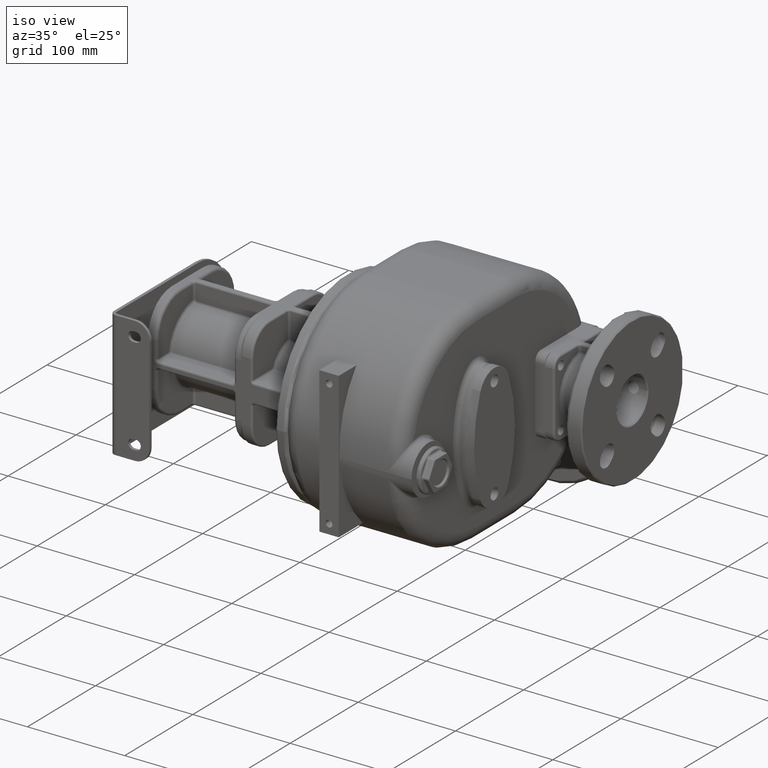
[diagram: clean part render]
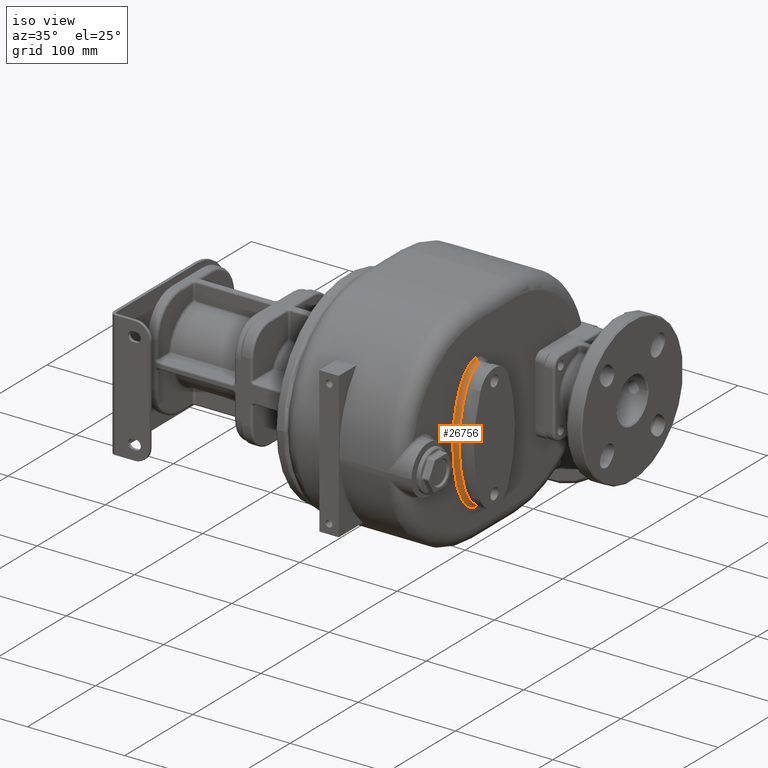
[diagram: same view with one face highlighted and labeled with its STEP entity id]
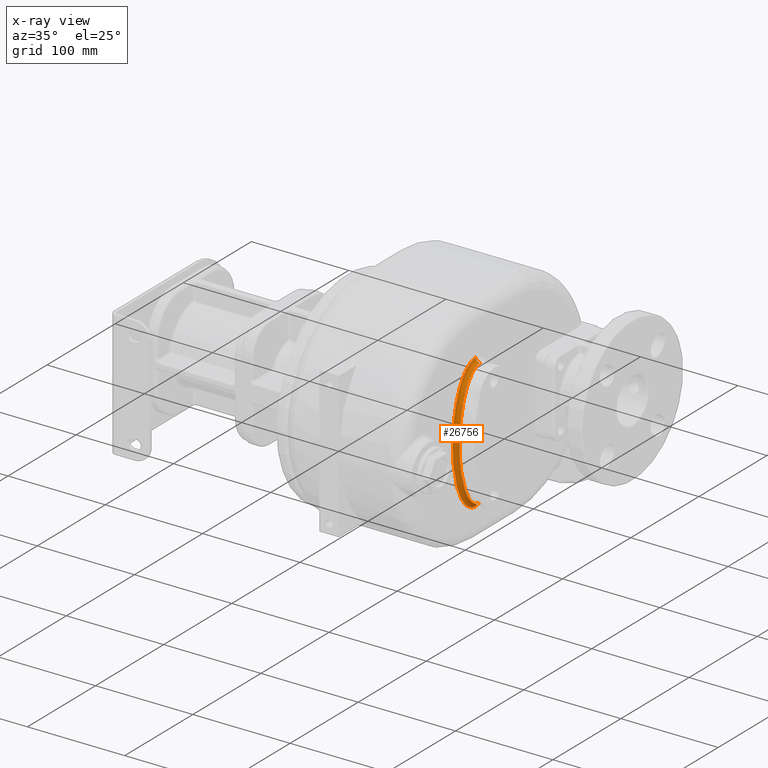
[diagram: x-ray of the same camera — body ghosted, the highlighted face saturated]
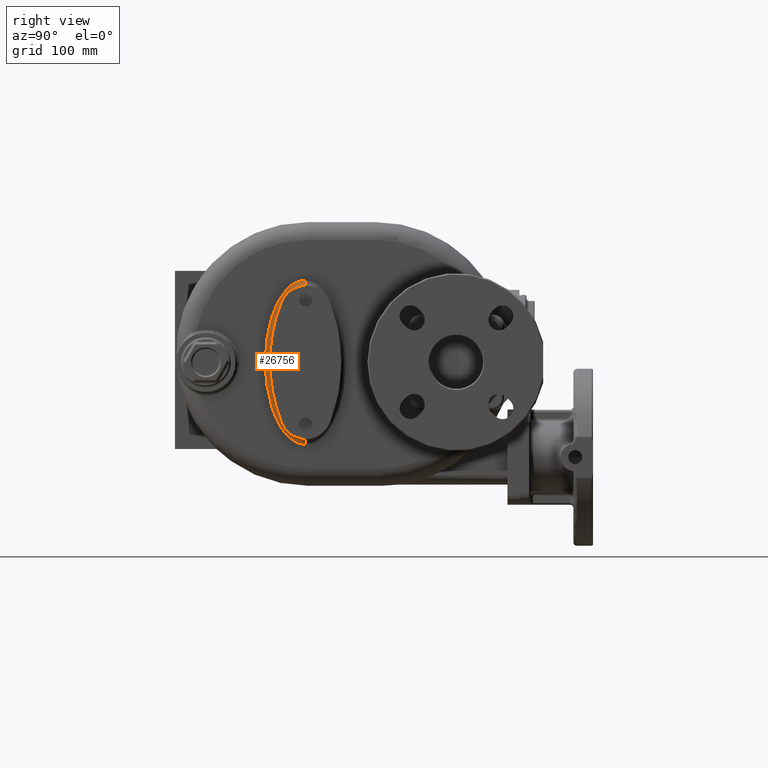
[diagram: same view with one face highlighted and labeled with its STEP entity id]
A machine part, iso view. The second image highlights one B-rep face of the part: STEP entity #26756.
The next image is the same camera in x-ray: the body ghosted, the highlighted face saturated — about 0% of this face is hidden behind the body in this view.
A second angle (right view) of the same face is appended — the face is thin or edge-on in the first view.
In plain terms, the highlighted face is a freeform B-spline surface patch.
Its self-contained STEP definition (entity closure, byte-faithful):
#2377=CARTESIAN_POINT('',(7.400000634498E1,1.099999999998E2,-7.599999999998E1));
#2487=CARTESIAN_POINT('',(7.400000634498E1,1.100000000002E2,6.199999999998E1));
#2489=CARTESIAN_POINT('',(7.400000634498E1,1.100000000002E2,6.199999999998E1));
#2490=CARTESIAN_POINT('',(7.400001016623E1,1.097864255186E2,6.199999317442E1));
#2491=CARTESIAN_POINT('',(7.399999528184E1,1.093582951461E2,6.199229907980E1));
#2492=CARTESIAN_POINT('',(7.400000126423E1,1.087129691518E2,6.195749155583E1));
#2493=CARTESIAN_POINT('',(7.399999966125E1,1.080650713003E2,6.189893652659E1));
#2494=CARTESIAN_POINT('',(7.400000009077E1,1.074149422378E2,6.181637691769E1));
#2495=CARTESIAN_POINT('',(7.399999997568E1,1.067629530415E2,6.170954380167E1));
#2496=CARTESIAN_POINT('',(7.400000000652E1,1.061096549127E2,6.157808600898E1));
#2497=CARTESIAN_POINT('',(7.399999999825E1,1.054550537673E2,6.142173653598E1));
#2498=CARTESIAN_POINT('',(7.400000000047E1,1.047982427450E2,6.123985690766E1));
#2499=CARTESIAN_POINT('',(7.399999999987E1,1.041385800657E2,6.103159298640E1));
#2500=CARTESIAN_POINT('',(7.400000000003E1,1.034755941347E2,6.079616920723E1));
#2501=CARTESIAN_POINT('',(7.399999999999E1,1.028091774695E2,6.053274117083E1));
#2502=CARTESIAN_POINT('',(7.4E1,1.021392803762E2,6.024040083799E1));
#2503=CARTESIAN_POINT('',(7.4E1,1.014653446813E2,5.991799145068E1));
#2504=CARTESIAN_POINT('',(7.4E1,1.007870304926E2,5.956421515867E1));
#2505=CARTESIAN_POINT('',(7.4E1,1.001039183801E2,5.917765712304E1));
#2506=CARTESIAN_POINT('',(7.4E1,9.941573877734E1,5.875679610768E1));
#2507=CARTESIAN_POINT('',(7.4E1,9.872230784045E1,5.830000907389E1));
#2508=CARTESIAN_POINT('',(7.4E1,9.802315782449E1,5.780534040832E1));
#2509=CARTESIAN_POINT('',(7.4E1,9.731816779279E1,5.727087796199E1));
#2510=CARTESIAN_POINT('',(7.4E1,9.660703207734E1,5.669433660117E1));
#2511=CARTESIAN_POINT('',(7.4E1,9.588957941500E1,5.607338677993E1));
#2512=CARTESIAN_POINT('',(7.4E1,9.516580997849E1,5.540558207864E1));
#2513=CARTESIAN_POINT('',(7.4E1,9.443551483985E1,5.468799005822E1));
#2514=CARTESIAN_POINT('',(7.4E1,9.369882861536E1,5.391792389553E1));
#2515=CARTESIAN_POINT('',(7.4E1,9.295583217136E1,5.309210027617E1));
#2516=CARTESIAN_POINT('',(7.4E1,9.220667555239E1,5.220720784048E1));
#2517=CARTESIAN_POINT('',(7.4E1,9.145179272807E1,5.125995393841E1));
#2518=CARTESIAN_POINT('',(7.4E1,9.069162995005E1,5.024646069120E1));
#2519=CARTESIAN_POINT('',(7.4E1,8.992683460381E1,4.916321637141E1));
#2520=CARTESIAN_POINT('',(7.4E1,8.915833834719E1,4.800622592836E1));
#2521=CARTESIAN_POINT('',(7.4E1,8.838715930190E1,4.677174800671E1));
#2522=CARTESIAN_POINT('',(7.4E1,8.761467028553E1,4.545578958768E1));
#2523=CARTESIAN_POINT('',(7.4E1,8.684233478774E1,4.405453730645E1));
#2524=CARTESIAN_POINT('',(7.4E1,8.607203293465E1,4.256417048403E1));
#2525=CARTESIAN_POINT('',(7.4E1,8.530579810112E1,4.098113656314E1));
#2526=CARTESIAN_POINT('',(7.4E1,8.454602327321E1,3.930204993034E1));
#2527=CARTESIAN_POINT('',(7.4E1,8.379538876064E1,3.752392194267E1));
#2528=CARTESIAN_POINT('',(7.4E1,8.305679161787E1,3.564416015036E1));
#2529=CARTESIAN_POINT('',(7.4E1,8.233357881726E1,3.366079853117E1));
#2530=CARTESIAN_POINT('',(7.4E1,8.162917730751E1,3.157246477210E1));
#2531=CARTESIAN_POINT('',(7.4E1,8.094745636475E1,2.937866750332E1));
#2532=CARTESIAN_POINT('',(7.4E1,8.029237572995E1,2.707977775896E1));
#2533=CARTESIAN_POINT('',(7.4E1,7.966808955932E1,2.467711111202E1));
#2534=CARTESIAN_POINT('',(7.4E1,7.907895352958E1,2.217326376818E1));
#2535=CARTESIAN_POINT('',(7.4E1,7.852917683277E1,1.957168466819E1));
#2536=CARTESIAN_POINT('',(7.4E1,7.802323708855E1,1.687757250381E1));
#2537=CARTESIAN_POINT('',(7.4E1,7.756514159790E1,1.409681585771E1));
#2538=CARTESIAN_POINT('',(7.4E1,7.715910088021E1,1.123725186405E1));
#2539=CARTESIAN_POINT('',(7.4E1,7.680858187887E1,8.307149175230E0));
#2540=CARTESIAN_POINT('',(7.4E1,7.651713210934E1,5.316734765686E0));
#2541=CARTESIAN_POINT('',(7.4E1,7.628736253242E1,2.276413983332E0));
#2542=CARTESIAN_POINT('',(7.4E1,7.612176113114E1,-8.018120072720E-1));
#2543=CARTESIAN_POINT('',(7.4E1,7.602187953829E1,-3.905760503602E0));
#2544=CARTESIAN_POINT('',(7.4E1,7.598878608137E1,-7.022581563332E0));
#2545=CARTESIAN_POINT('',(7.4E1,7.602287506757E1,-1.013907949007E1));
#2546=CARTESIAN_POINT('',(7.4E1,7.612362006246E1,-1.324226962183E1));
#2547=CARTESIAN_POINT('',(7.4E1,7.629020920675E1,-1.631942609593E1));
#2548=CARTESIAN_POINT('',(7.4E1,7.652065928252E1,-1.935793488995E1));
#2549=CARTESIAN_POINT('',(7.4E1,7.681291737587E1,-2.234663338004E1));
#2550=CARTESIAN_POINT('',(7.4E1,7.716393219935E1,-2.527430390097E1));
#2551=CARTESIAN_POINT('',(7.4E1,7.757051343036E1,-2.813160437940E1));
#2552=CARTESIAN_POINT('',(7.4E1,7.802886968283E1,-3.090954895437E1));
#2553=CARTESIAN_POINT('',(7.4E1,7.853506330688E1,-3.360101600633E1));
#2554=CARTESIAN_POINT('',(7.4E1,7.908483994672E1,-3.619962175430E1));
#2555=CARTESIAN_POINT('',(7.4E1,7.967397117081E1,-3.870074139662E1));
#2556=CARTESIAN_POINT('',(7.4E1,8.029802940824E1,-4.110051781887E1));
#2557=CARTESIAN_POINT('',(7.4E1,8.095286810144E1,-4.339674319626E1));
#2558=CARTESIAN_POINT('',(7.4E1,8.163418687627E1,-4.558789397878E1));
#2559=CARTESIAN_POINT('',(7.4E1,8.233816063839E1,-4.767379906058E1));
#2560=CARTESIAN_POINT('',(7.4E1,8.306089001904E1,-4.965493742292E1));
#2561=CARTESIAN_POINT('',(7.4E1,8.379897146508E1,-5.153269212327E1));
#2562=CARTESIAN_POINT('',(7.4E1,8.454910772015E1,-5.330906005177E1));
#2563=CARTESIAN_POINT('',(7.4E1,8.530834609415E1,-5.498656224660E1));
#2564=CARTESIAN_POINT('',(7.4E1,8.607405989573E1,-5.656819146798E1));
#2565=CARTESIAN_POINT('',(7.4E1,8.684381509967E1,-5.805728549558E1));
#2566=CARTESIAN_POINT('',(7.4E1,8.761558630909E1,-5.945738668377E1));
#2567=CARTESIAN_POINT('',(7.4E1,8.838749600166E1,-6.077227229393E1));
#2568=CARTESIAN_POINT('',(7.4E1,8.915806630326E1,-6.200579837115E1));
#2569=CARTESIAN_POINT('',(7.4E1,8.992592366835E1,-6.316185351256E1));
#2570=CARTESIAN_POINT('',(7.4E1,9.069006444616E1,-6.424430181801E1));
#2571=CARTESIAN_POINT('',(7.4E1,9.144953310861E1,-6.525701375160E1));
#2572=CARTESIAN_POINT('',(7.4E1,9.220378315875E1,-6.620365574523E1));
#2573=CARTESIAN_POINT('',(7.4E1,9.295228469129E1,-6.708803891076E1));
#2574=CARTESIAN_POINT('',(7.4E1,9.369468305279E1,-6.791342986184E1));
#2575=CARTESIAN_POINT('',(7.4E1,9.443093045238E1,-6.868333782490E1));
#2576=CARTESIAN_POINT('',(7.4E1,9.516078269635E1,-6.940078986789E1));
#2577=CARTESIAN_POINT('',(7.4E1,9.588427073376E1,-7.006862851303E1));
#2578=CARTESIAN_POINT('',(7.4E1,9.660150785275E1,-7.068970867633E1));
#2579=CARTESIAN_POINT('',(7.4E1,9.731247164803E1,-7.126640586485E1));
#2580=CARTESIAN_POINT('',(7.4E1,9.801746907277E1,-7.180117041657E1));
#2581=CARTESIAN_POINT('',(7.4E1,9.871659800113E1,-7.229611144136E1));
#2582=CARTESIAN_POINT('',(7.4E1,9.941010937740E1,-7.275321981832E1));
#2583=CARTESIAN_POINT('',(7.4E1,1.000983233653E2,-7.317436176240E1));
#2584=CARTESIAN_POINT('',(7.4E1,1.007814577828E2,-7.356119302175E1));
#2585=CARTESIAN_POINT('',(7.4E1,1.014599406067E2,-7.391528472895E1));
#2586=CARTESIAN_POINT('',(7.4E1,1.021339724198E2,-7.423798058331E1));
#2587=CARTESIAN_POINT('',(7.399999999999E1,1.028039396588E2,-7.453055630618E1));
#2588=CARTESIAN_POINT('',(7.400000000003E1,1.034702178295E2,-7.479415406132E1));
#2589=CARTESIAN_POINT('',(7.399999999990E1,1.041333130042E2,-7.502984478630E1));
#2590=CARTESIAN_POINT('',(7.400000000039E1,1.047934141829E2,-7.523840842812E1));
#2591=CARTESIAN_POINT('',(7.399999999854E1,1.054505451671E2,-7.542060472162E1));
#2592=CARTESIAN_POINT('',(7.400000000544E1,1.061051909928E2,-7.557710486507E1));
#2593=CARTESIAN_POINT('',(7.399999997968E1,1.067581404141E2,-7.570864197913E1));
#2594=CARTESIAN_POINT('',(7.400000007583E1,1.074102236830E2,-7.581572289521E1));
#2595=CARTESIAN_POINT('',(7.399999971702E1,1.080609829395E2,-7.589849447894E1));
#2596=CARTESIAN_POINT('',(7.400000105611E1,1.087099044876E2,-7.595728424412E1));
#2597=CARTESIAN_POINT('',(7.399999605855E1,1.093566074625E2,-7.599227653355E1));
#2598=CARTESIAN_POINT('',(7.400000849264E1,1.097858304664E2,-7.599999625812E1));
#2599=CARTESIAN_POINT('',(7.400000634498E1,1.099999999998E2,-7.599999999998E1));
#7122=CARTESIAN_POINT('',(7.8E1,1.099999997951E2,-7.599999017691E1));
#7123=DIRECTION('',(0.E0,1.E0,-9.184269956634E-8));
#7124=DIRECTION('',(-9.999999999970E-1,-2.238212250549E-13,-2.455771341421E-6));
#7125=AXIS2_PLACEMENT_3D('',#7122,#7123,#7124);
#7127=CARTESIAN_POINT('',(7.8E1,1.100000002049E2,6.199999017691E1));
#7128=DIRECTION('',(0.E0,-1.E0,9.184269966478E-8));
#7129=DIRECTION('',(-9.999999999970E-1,2.238212250549E-13,2.455771336092E-6));
#7130=AXIS2_PLACEMENT_3D('',#7127,#7128,#7129);
#7147=CARTESIAN_POINT('',(7.8E1,1.100000000001E2,5.799999736271E1));
#7148=CARTESIAN_POINT('',(7.8E1,1.080365045916E2,5.799999736271E1));
#7149=CARTESIAN_POINT('',(7.8E1,1.041095719083E2,5.716199481289E1));
#7150=CARTESIAN_POINT('',(7.8E1,9.844548347074E1,5.343928146810E1));
#7151=CARTESIAN_POINT('',(7.8E1,9.322547638304E1,4.739389699413E1));
#7152=CARTESIAN_POINT('',(7.8E1,8.864996905356E1,3.925827935338E1));
#7153=CARTESIAN_POINT('',(7.8E1,8.489542678913E1,2.934463025511E1));
#7154=CARTESIAN_POINT('',(7.8E1,8.117324917091E1,1.426591058671E1));
#7155=CARTESIAN_POINT('',(7.8E1,7.921783388606E1,-7.E0));
#7156=CARTESIAN_POINT('',(7.8E1,8.117324917091E1,-2.826591058671E1));
#7157=CARTESIAN_POINT('',(7.8E1,8.489542678913E1,-4.334463025511E1));
#7158=CARTESIAN_POINT('',(7.8E1,8.864996905356E1,-5.325827935338E1));
#7159=CARTESIAN_POINT('',(7.8E1,9.322547638305E1,-6.139389699413E1));
#7160=CARTESIAN_POINT('',(7.8E1,9.844548347072E1,-6.743928146810E1));
#7161=CARTESIAN_POINT('',(7.8E1,1.041095719083E2,-7.116199481289E1));
#7162=CARTESIAN_POINT('',(7.8E1,1.080365045914E2,-7.199999736271E1));
#7163=CARTESIAN_POINT('',(7.8E1,1.099999999999E2,-7.199999736271E1));
#7287=CARTESIAN_POINT('',(7.8E1,1.099999999999E2,-7.199999736271E1));
#7303=CARTESIAN_POINT('',(7.8E1,1.100000000001E2,5.799999736271E1));
#13536=VERTEX_POINT('',#2377);
#13537=VERTEX_POINT('',#2487);
#13538=VERTEX_POINT('',#7287);
#13539=VERTEX_POINT('',#7303);
#26528=CARTESIAN_POINT('',(7.402921680581E1,1.117116894946E2,6.239797732800E1));
#26529=CARTESIAN_POINT('',(7.402874559842E1,1.112674279571E2,6.244000683022E1));
#26530=CARTESIAN_POINT('',(7.402870252229E1,1.102047861318E2,6.250075716760E1));
#26531=CARTESIAN_POINT('',(7.402872489780E1,1.084879344691E2,6.244893069028E1));
#26532=CARTESIAN_POINT('',(7.402871794115E1,1.065751995482E2,6.219196792783E1));
#26533=CARTESIAN_POINT('',(7.402871985997E1,1.046797080943E2,6.173288819316E1));
#26534=CARTESIAN_POINT('',(7.402871936199E1,1.028841411942E2,6.110523670070E1));
#26535=CARTESIAN_POINT('',(7.402871948975E1,1.011594094937E2,6.032433337434E1));
#26536=CARTESIAN_POINT('',(7.402871945254E1,9.944023648898E1,5.936479258753E1));
#26537=CARTESIAN_POINT('',(7.402871946400E1,9.766483737931E1,5.816816872360E1));
#26538=CARTESIAN_POINT('',(7.402871946046E1,9.583179477370E1,5.669812240350E1));
#26539=CARTESIAN_POINT('',(7.402871946158E1,9.394551186359E1,5.491564033986E1));
#26540=CARTESIAN_POINT('',(7.402871946123E1,9.205839237511E1,5.282538721953E1));
#26541=CARTESIAN_POINT('',(7.402871946133E1,9.026157944257E1,5.051224620530E1));
#26542=CARTESIAN_POINT('',(7.402871946130E1,8.862026906040E1,4.809096089587E1));
#26543=CARTESIAN_POINT('',(7.402871946131E1,8.713583752407E1,4.561477279027E1));
#26544=CARTESIAN_POINT('',(7.402871946131E1,8.576424351039E1,4.304918180600E1));
#26545=CARTESIAN_POINT('',(7.402871946131E1,8.445999829586E1,4.032138575240E1));
#26546=CARTESIAN_POINT('',(7.402871946131E1,8.318752939282E1,3.733819317106E1));
#26547=CARTESIAN_POINT('',(7.402871946131E1,8.193168720562E1,3.401262398380E1));
#26548=CARTESIAN_POINT('',(7.402871946131E1,8.070152594232E1,3.028725833838E1));
#26549=CARTESIAN_POINT('',(7.402871946131E1,7.952324832097E1,2.613841423426E1));
#26550=CARTESIAN_POINT('',(7.402871946131E1,7.842796642450E1,2.155504524110E1));
#26551=CARTESIAN_POINT('',(7.402871946131E1,7.744140399518E1,1.649015611293E1));
#26552=CARTESIAN_POINT('',(7.402871946131E1,7.659306902048E1,1.085517722297E1));
#26553=CARTESIAN_POINT('',(7.402871946131E1,7.593495836480E1,4.589960330690E0));
#26554=CARTESIAN_POINT('',(7.402871946131E1,7.554132718309E1,
-2.242537400249E0));
#26555=CARTESIAN_POINT('',(7.402871946131E1,7.548056721846E1,
-9.418938373287E0));
#26556=CARTESIAN_POINT('',(7.402871946131E1,7.577911013177E1,
-1.656872342550E1));
#26557=CARTESIAN_POINT('',(7.402871946131E1,7.639727156570E1,
-2.329976946625E1));
#26558=CARTESIAN_POINT('',(7.402871946131E1,7.724870996983E1,
-2.937028687026E1));
#26559=CARTESIAN_POINT('',(7.402871946131E1,7.825378879139E1,
-3.475155815705E1));
#26560=CARTESIAN_POINT('',(7.402871946131E1,7.936774401737E1,
-3.954307384511E1));
#26561=CARTESIAN_POINT('',(7.402871946131E1,8.055943905738E1,
-4.382341276972E1));
#26562=CARTESIAN_POINT('',(7.402871946131E1,8.179876647457E1,
-4.763579909626E1));
#26563=CARTESIAN_POINT('',(7.402871946131E1,8.306108163376E1,
-5.102260401599E1));
#26564=CARTESIAN_POINT('',(7.402871946131E1,8.433761836749E1,
-5.404965563919E1));
#26565=CARTESIAN_POINT('',(7.402871946131E1,8.564103601903E1,
-5.680436898139E1));
#26566=CARTESIAN_POINT('',(7.402871946131E1,8.700444004517E1,
-5.938101983801E1));
#26567=CARTESIAN_POINT('',(7.402871946131E1,8.847272729387E1,
-6.185729347765E1));
#26568=CARTESIAN_POINT('',(7.402871946130E1,9.009353417935E1,
-6.427820413151E1));
#26569=CARTESIAN_POINT('',(7.402871946132E1,9.187512681851E1,
-6.660454178114E1));
#26570=CARTESIAN_POINT('',(7.402871946125E1,9.375496928720E1,
-6.871904474493E1));
#26571=CARTESIAN_POINT('',(7.402871946148E1,9.563079625795E1,
-7.052051845642E1));
#26572=CARTESIAN_POINT('',(7.402871946078E1,9.743012563570E1,
-7.199112049578E1));
#26573=CARTESIAN_POINT('',(7.402871946298E1,9.914162854818E1,
-7.317511432233E1));
#26574=CARTESIAN_POINT('',(7.402871945603E1,1.007621665663E2,
-7.411494914014E1));
#26575=CARTESIAN_POINT('',(7.402871947844E1,1.023171680971E2,
-7.486207205474E1));
#26576=CARTESIAN_POINT('',(7.402871939802E1,1.038766882261E2,
-7.546807735793E1));
#26577=CARTESIAN_POINT('',(7.402871971089E1,1.055002219307E2,
-7.594900105054E1));
#26578=CARTESIAN_POINT('',(7.402871853228E1,1.071842735207E2,
-7.628822620937E1));
#26579=CARTESIAN_POINT('',(7.402872280143E1,1.088685623805E2,
-7.646897498489E1));
#26580=CARTESIAN_POINT('',(7.402870889748E1,1.103791473566E2,
-7.649285364214E1));
#26581=CARTESIAN_POINT('',(7.402873565487E1,1.113183526578E2,
-7.643521011687E1));
#26582=CARTESIAN_POINT('',(7.402902304247E1,1.117099221451E2,
-7.639832803188E1));
#26583=CARTESIAN_POINT('',(7.369244942371E1,1.114512454911E2,5.961478824252E1));
#26584=CARTESIAN_POINT('',(7.369193825260E1,1.110742247611E2,5.965036024937E1));
#26585=CARTESIAN_POINT('',(7.369189152312E1,1.101734160906E2,5.970182390296E1));
#26586=CARTESIAN_POINT('',(7.369191579633E1,1.087188642808E2,5.965795091805E1));
#26587=CARTESIAN_POINT('',(7.369190824967E1,1.070939823024E2,5.943985217083E1));
#26588=CARTESIAN_POINT('',(7.369191033123E1,1.054738444143E2,5.904779858760E1));
#26589=CARTESIAN_POINT('',(7.369190979101E1,1.039256752297E2,5.850701755781E1));
#26590=CARTESIAN_POINT('',(7.369190992962E1,1.024237291414E2,5.782736815663E1));
#26591=CARTESIAN_POINT('',(7.369190988925E1,1.009102870805E2,5.698312903112E1));
#26592=CARTESIAN_POINT('',(7.369190990168E1,9.932850798304E1,5.591759974439E1));
#26593=CARTESIAN_POINT('',(7.369190989784E1,9.767480259184E1,5.459207133109E1));
#26594=CARTESIAN_POINT('',(7.369190989905E1,9.595162440579E1,5.296452673955E1));
#26595=CARTESIAN_POINT('',(7.369190989867E1,9.420672577164E1,5.103268642421E1));
#26596=CARTESIAN_POINT('',(7.369190989878E1,9.252736790187E1,4.887152494663E1));
#26597=CARTESIAN_POINT('',(7.369190989875E1,9.097981288693E1,4.658912367636E1));
#26598=CARTESIAN_POINT('',(7.369190989876E1,8.957034409901E1,4.423841467699E1));
#26599=CARTESIAN_POINT('',(7.369190989876E1,8.826059539362E1,4.178885952178E1));
#26600=CARTESIAN_POINT('',(7.369190989876E1,8.700921179309E1,3.917194383025E1));
#26601=CARTESIAN_POINT('',(7.369190989876E1,8.578327291142E1,3.629816041690E1));
#26602=CARTESIAN_POINT('',(7.369190989876E1,8.456893801557E1,3.308285570068E1));
#26603=CARTESIAN_POINT('',(7.369190989876E1,8.337559341043E1,2.946937068357E1));
#26604=CARTESIAN_POINT('',(7.369190989876E1,8.222937077229E1,2.543381546252E1));
#26605=CARTESIAN_POINT('',(7.369190989876E1,8.116135131967E1,2.096498096359E1));
#26606=CARTESIAN_POINT('',(7.369190989876E1,8.019745170684E1,1.601693325910E1));
#26607=CARTESIAN_POINT('',(7.369190989876E1,7.936728320775E1,1.050319696486E1));
#26608=CARTESIAN_POINT('',(7.369190989876E1,7.872247180460E1,4.365289646754E0));
#26609=CARTESIAN_POINT('',(7.369190989876E1,7.833647603695E1,
-2.333836366293E0));
#26610=CARTESIAN_POINT('',(7.369190989876E1,7.827687326194E1,
-9.372587498122E0));
#26611=CARTESIAN_POINT('',(7.369190989876E1,7.856967850952E1,
-1.638401109753E1));
#26612=CARTESIAN_POINT('',(7.369190989876E1,7.917552816425E1,
-2.298013497343E1));
#26613=CARTESIAN_POINT('',(7.369190989876E1,8.000901025926E1,
-2.892193198140E1));
#26614=CARTESIAN_POINT('',(7.369190989876E1,8.099132465353E1,
-3.418074840510E1));
#26615=CARTESIAN_POINT('',(7.369190989876E1,8.207790057349E1,
-3.885399841884E1));
#26616=CARTESIAN_POINT('',(7.369190989876E1,8.323754636202E1,
-4.301877605647E1));
#26617=CARTESIAN_POINT('',(7.369190989876E1,8.444018115132E1,
-4.671788763783E1));
#26618=CARTESIAN_POINT('',(7.369190989876E1,8.566120367417E1,
-4.999354386264E1));
#26619=CARTESIAN_POINT('',(7.369190989876E1,8.689152185517E1,
-5.291066752712E1));
#26620=CARTESIAN_POINT('',(7.369190989876E1,8.814262294190E1,
-5.555448900029E1));
#26621=CARTESIAN_POINT('',(7.369190989876E1,8.944516376780E1,
-5.801576821687E1));
#26622=CARTESIAN_POINT('',(7.369190989876E1,9.084011011552E1,
-6.036793222135E1));
#26623=CARTESIAN_POINT('',(7.369190989875E1,9.236947475878E1,
-6.265170819131E1));
#26624=CARTESIAN_POINT('',(7.369190989877E1,9.403620886106E1,
-6.482731715316E1));
#26625=CARTESIAN_POINT('',(7.369190989870E1,9.577636638642E1,
-6.678381508057E1));
#26626=CARTESIAN_POINT('',(7.369190989894E1,9.749212047596E1,
-6.843075398952E1));
#26627=CARTESIAN_POINT('',(7.369190989819E1,9.911771108877E1,
-6.975869760849E1));
#26628=CARTESIAN_POINT('',(7.369190990057E1,1.006452967360E2,
-7.081492408716E1));
#26629=CARTESIAN_POINT('',(7.369190989303E1,1.020751561467E2,
-7.164376192825E1));
#26630=CARTESIAN_POINT('',(7.369190991735E1,1.034331246753E2,
-7.229591543913E1));
#26631=CARTESIAN_POINT('',(7.369190983010E1,1.047827098130E2,
-7.282008210212E1));
#26632=CARTESIAN_POINT('',(7.369191016951E1,1.061762160498E2,
-7.323261456585E1));
#26633=CARTESIAN_POINT('',(7.369190889094E1,1.076119100641E2,
-7.352161679074E1));
#26634=CARTESIAN_POINT('',(7.369191352216E1,1.090413945039E2,
-7.367491700495E1));
#26635=CARTESIAN_POINT('',(7.369189843900E1,1.103211691609E2,
-7.369513427430E1));
#26636=CARTESIAN_POINT('',(7.369192746572E1,1.111174422396E2,
-7.364628747233E1));
#26637=CARTESIAN_POINT('',(7.369223922704E1,1.114497458486E2,
-7.361504619699E1));
#26638=CARTESIAN_POINT('',(7.568322472472E1,1.112657517042E2,5.763254147937E1));
#26639=CARTESIAN_POINT('',(7.568294979618E1,1.109366213148E2,5.766351431997E1));
#26640=CARTESIAN_POINT('',(7.568292466318E1,1.101510736767E2,5.770836379885E1));
#26641=CARTESIAN_POINT('',(7.568293771829E1,1.088833374293E2,5.767015546126E1));
#26642=CARTESIAN_POINT('',(7.568293365940E1,1.074634704701E2,5.747973649648E1));
#26643=CARTESIAN_POINT('',(7.568293477894E1,1.060394452777E2,5.713542037112E1));
#26644=CARTESIAN_POINT('',(7.568293448839E1,1.046674780347E2,5.665651034188E1));
#26645=CARTESIAN_POINT('',(7.568293456294E1,1.033242046220E2,5.604897615074E1));
#26646=CARTESIAN_POINT('',(7.568293454122E1,1.019572885372E2,5.528685733323E1));
#26647=CARTESIAN_POINT('',(7.568293454791E1,1.005134097515E2,5.431469640679E1));
#26648=CARTESIAN_POINT('',(7.568293454585E1,9.898743215805E1,5.309209673607E1));
#26649=CARTESIAN_POINT('',(7.568293454650E1,9.738042064319E1,5.157490192429E1));
#26650=CARTESIAN_POINT('',(7.568293454629E1,9.573681474176E1,4.975588659507E1));
#26651=CARTESIAN_POINT('',(7.568293454635E1,9.414111087853E1,4.770296819237E1));
#26652=CARTESIAN_POINT('',(7.568293454634E1,9.266033044036E1,4.551948310371E1));
#26653=CARTESIAN_POINT('',(7.568293454634E1,9.130425172435E1,4.325814300618E1));
#26654=CARTESIAN_POINT('',(7.568293454634E1,9.003855056959E1,4.089123104894E1));
#26655=CARTESIAN_POINT('',(7.568293454634E1,8.882481614057E1,3.835328672157E1));
#26656=CARTESIAN_POINT('',(7.568293454634E1,8.763201693479E1,3.555742685652E1));
#26657=CARTESIAN_POINT('',(7.568293454634E1,8.644724441916E1,3.242065485371E1));
#26658=CARTESIAN_POINT('',(7.568293454634E1,8.528012142498E1,2.888685361177E1));
#26659=CARTESIAN_POINT('',(7.568293454634E1,8.415672903113E1,2.493198515502E1));
#26660=CARTESIAN_POINT('',(7.568293454634E1,8.310812647382E1,2.054472457129E1));
#26661=CARTESIAN_POINT('',(7.568293454634E1,8.216036780335E1,1.567989382648E1));
#26662=CARTESIAN_POINT('',(7.568293454634E1,8.134313785655E1,1.025250910072E1));
#26663=CARTESIAN_POINT('',(7.568293454634E1,8.070779846534E1,4.205274382851E0));
#26664=CARTESIAN_POINT('',(7.568293454634E1,8.032724080280E1,
-2.398861441616E0));
#26665=CARTESIAN_POINT('',(7.568293454634E1,8.026846220298E1,
-9.339575413983E0));
#26666=CARTESIAN_POINT('',(7.568293454634E1,8.055718096237E1,
-1.625245502894E1));
#26667=CARTESIAN_POINT('',(7.568293454634E1,8.115426190477E1,
-2.275248445478E1));
#26668=CARTESIAN_POINT('',(7.568293454634E1,8.197495513256E1,
-2.860260404502E1));
#26669=CARTESIAN_POINT('',(7.568293454634E1,8.294105621509E1,
-3.377420549752E1));
#26670=CARTESIAN_POINT('',(7.568293454634E1,8.400813200801E1,
-3.836322416983E1));
#26671=CARTESIAN_POINT('',(7.568293454634E1,8.514495163452E1,
-4.244569658850E1));
#26672=CARTESIAN_POINT('',(7.568293454634E1,8.632145314985E1,
-4.606413147486E1));
#26673=CARTESIAN_POINT('',(7.568293454634E1,8.751306617439E1,
-4.926062522312E1));
#26674=CARTESIAN_POINT('',(7.568293454634E1,8.871046651411E1,
-5.209945584546E1));
#26675=CARTESIAN_POINT('',(7.568293454634E1,8.992430662501E1,
-5.466429775896E1));
#26676=CARTESIAN_POINT('',(7.568293454634E1,9.118349937862E1,
-5.704340682719E1));
#26677=CARTESIAN_POINT('',(7.568293454634E1,9.252621076884E1,
-5.930717729641E1));
#26678=CARTESIAN_POINT('',(7.568293454634E1,9.399044829243E1,
-6.149328301296E1));
#26679=CARTESIAN_POINT('',(7.568293454635E1,9.557537768940E1,
-6.356153978123E1));
#26680=CARTESIAN_POINT('',(7.568293454631E1,9.721604861207E1,
-6.540550314404E1));
#26681=CARTESIAN_POINT('',(7.568293454644E1,9.881779537372E1,
-6.694237906312E1));
#26682=CARTESIAN_POINT('',(7.568293454603E1,1.003196455241E2,
-6.816871830547E1));
#26683=CARTESIAN_POINT('',(7.568293454731E1,1.017162413634E2,
-6.913394614768E1));
#26684=CARTESIAN_POINT('',(7.568293454326E1,1.030102953938E2,
-6.988372956916E1));
#26685=CARTESIAN_POINT('',(7.568293455634E1,1.042279328061E2,
-7.046824384055E1));
#26686=CARTESIAN_POINT('',(7.568293450942E1,1.054279977554E2,
-7.093412327451E1));
#26687=CARTESIAN_POINT('',(7.568293469196E1,1.066576735121E2,
-7.129794604302E1));
#26688=CARTESIAN_POINT('',(7.568293400429E1,1.079164819520E2,
-7.155117842074E1));
#26689=CARTESIAN_POINT('',(7.568293649515E1,1.091644892368E2,
-7.168492918281E1));
#26690=CARTESIAN_POINT('',(7.568292838282E1,1.102798758504E2,
-7.170253873344E1));
#26691=CARTESIAN_POINT('',(7.568294399456E1,1.109743495449E2,
-7.165995714584E1));
#26692=CARTESIAN_POINT('',(7.568311167244E1,1.112644427284E2,
-7.163273337573E1));
#26693=CARTESIAN_POINT('',(7.847839671813E1,1.112971297852E2,5.796785782864E1));
#26694=CARTESIAN_POINT('',(7.847845348881E1,1.109598982782E2,5.799960866302E1));
#26695=CARTESIAN_POINT('',(7.847845867859E1,1.101548531137E2,5.804557699397E1));
#26696=CARTESIAN_POINT('',(7.847845598281E1,1.088555151941E2,5.800641042611E1));
#26697=CARTESIAN_POINT('',(7.847845682094E1,1.074009679473E2,5.781130915650E1));
#26698=CARTESIAN_POINT('',(7.847845658976E1,1.059437683821E2,5.745891777513E1));
#26699=CARTESIAN_POINT('',(7.847845664976E1,1.045419948642E2,5.696954166345E1));
#26700=CARTESIAN_POINT('',(7.847845663436E1,1.031718804228E2,5.634980848205E1));
#26701=CARTESIAN_POINT('',(7.847845663885E1,1.017801780418E2,5.557379821450E1));
#26702=CARTESIAN_POINT('',(7.847845663747E1,1.003129720751E2,5.458584312041E1));
#26703=CARTESIAN_POINT('',(7.847845663789E1,9.876538808045E1,5.334583205024E1));
#26704=CARTESIAN_POINT('',(7.847845663776E1,9.713872584157E1,5.180997049828E1));
#26705=CARTESIAN_POINT('',(7.847845663780E1,9.547798528770E1,4.997186972362E1));
#26706=CARTESIAN_POINT('',(7.847845663779E1,9.386813053438E1,4.790064095039E1));
#26707=CARTESIAN_POINT('',(7.847845663779E1,9.237605452609E1,4.570042322606E1));
#26708=CARTESIAN_POINT('',(7.847845663779E1,9.101094435933E1,4.342396550823E1));
#26709=CARTESIAN_POINT('',(7.847845663779E1,8.973779213231E1,4.104307364902E1));
#26710=CARTESIAN_POINT('',(7.847845663779E1,8.851768897919E1,3.849177054613E1));
#26711=CARTESIAN_POINT('',(7.847845663779E1,8.731928387442E1,3.568272915383E1));
#26712=CARTESIAN_POINT('',(7.847845663779E1,8.612951059420E1,3.253267257755E1));
#26713=CARTESIAN_POINT('',(7.847845663779E1,8.495795195910E1,2.898539204882E1));
#26714=CARTESIAN_POINT('',(7.847845663779E1,8.383069760704E1,2.501687463991E1));
#26715=CARTESIAN_POINT('',(7.847845663779E1,8.277881049274E1,2.061581503381E1));
#26716=CARTESIAN_POINT('',(7.847845663779E1,8.182832142464E1,1.573690732965E1));
#26717=CARTESIAN_POINT('',(7.847845663779E1,8.100890279568E1,1.029491539492E1));
#26718=CARTESIAN_POINT('',(7.847845663779E1,8.037196112139E1,4.232342523466E0));
#26719=CARTESIAN_POINT('',(7.847845663779E1,7.999048355040E1,
-2.387861816708E0));
#26720=CARTESIAN_POINT('',(7.847845663779E1,7.993156553331E1,
-9.345159729589E0));
#26721=CARTESIAN_POINT('',(7.847845663779E1,8.022097556199E1,
-1.627470901945E1));
#26722=CARTESIAN_POINT('',(7.847845663779E1,8.081953981749E1,
-2.279099375758E1));
#26723=CARTESIAN_POINT('',(7.847845663779E1,8.164239640676E1,
-2.865662147607E1));
#26724=CARTESIAN_POINT('',(7.847845663779E1,8.261124012890E1,
-3.384297619052E1));
#26725=CARTESIAN_POINT('',(7.847845663779E1,8.368161455826E1,
-3.844624341474E1));
#26726=CARTESIAN_POINT('',(7.847845663779E1,8.482229545243E1,
-4.254263856293E1));
#26727=CARTESIAN_POINT('',(7.847845663779E1,8.600321766562E1,
-4.617472069814E1));
#26728=CARTESIAN_POINT('',(7.847845663779E1,8.719980559328E1,
-4.938460555043E1));
#26729=CARTESIAN_POINT('',(7.847845663779E1,8.840277430651E1,
-5.223668020352E1));
#26730=CARTESIAN_POINT('',(7.847845663779E1,8.962291747444E1,
-5.481488227888E1));
#26731=CARTESIAN_POINT('',(7.847845663779E1,9.088944297673E1,
-5.720789122813E1));
#26732=CARTESIAN_POINT('',(7.847845663779E1,9.224099041884E1,
-5.948661432490E1));
#26733=CARTESIAN_POINT('',(7.847845663779E1,9.371624482913E1,
-6.168924191623E1));
#26734=CARTESIAN_POINT('',(7.847845663779E1,9.531501228887E1,
-6.377565835377E1));
#26735=CARTESIAN_POINT('',(7.847845663780E1,9.697251233949E1,
-6.563865803439E1));
#26736=CARTESIAN_POINT('',(7.847845663777E1,9.859354455122E1,
-6.719415218035E1));
#26737=CARTESIAN_POINT('',(7.847845663785E1,1.001163266062E2,
-6.843767879274E1));
#26738=CARTESIAN_POINT('',(7.847845663759E1,1.015350806474E2,
-6.941829994074E1));
#26739=CARTESIAN_POINT('',(7.847845663843E1,1.028521074809E2,
-7.018145618737E1));
#26740=CARTESIAN_POINT('',(7.847845663573E1,1.040934832685E2,
-7.077741229500E1));
#26741=CARTESIAN_POINT('',(7.847845664542E1,1.053188410141E2,
-7.125315158153E1));
#26742=CARTESIAN_POINT('',(7.847845660772E1,1.065762302924E2,
-7.162521406948E1));
#26743=CARTESIAN_POINT('',(7.847845674972E1,1.078649606503E2,
-7.188449726529E1));
#26744=CARTESIAN_POINT('',(7.847845623537E1,1.091436665637E2,
-7.202155500761E1));
#26745=CARTESIAN_POINT('',(7.847845791051E1,1.102868610161E2,
-7.203960567927E1));
#26746=CARTESIAN_POINT('',(7.847845468680E1,1.109985550681E2,
-7.199596426963E1));
#26747=CARTESIAN_POINT('',(7.847842006258E1,1.112957885563E2,
-7.196806089937E1));
#26748=(BOUNDED_SURFACE()B_SPLINE_SURFACE(3,3,((#26528,#26529,#26530,#26531,
#26532,#26533,#26534,#26535,#26536,#26537,#26538,#26539,#26540,#26541,#26542,
#26543,#26544,#26545,#26546,#26547,#26548,#26549,#26550,#26551,#26552,#26553,
#26554,#26555,#26556,#26557,#26558,#26559,#26560,#26561,#26562,#26563,#26564,
#26565,#26566,#26567,#26568,#26569,#26570,#26571,#26572,#26573,#26574,#26575,
#26576,#26577,#26578,#26579,#26580,#26581,#26582),(#26583,#26584,#26585,#26586,
#26587,#26588,#26589,#26590,#26591,#26592,#26593,#26594,#26595,#26596,#26597,
#26598,#26599,#26600,#26601,#26602,#26603,#26604,#26605,#26606,#26607,#26608,
#26609,#26610,#26611,#26612,#26613,#26614,#26615,#26616,#26617,#26618,#26619,
#26620,#26621,#26622,#26623,#26624,#26625,#26626,#26627,#26628,#26629,#26630,
#26631,#26632,#26633,#26634,#26635,#26636,#26637),(#26638,#26639,#26640,#26641,
#26642,#26643,#26644,#26645,#26646,#26647,#26648,#26649,#26650,#26651,#26652,
#26653,#26654,#26655,#26656,#26657,#26658,#26659,#26660,#26661,#26662,#26663,
#26664,#26665,#26666,#26667,#26668,#26669,#26670,#26671,#26672,#26673,#26674,
#26675,#26676,#26677,#26678,#26679,#26680,#26681,#26682,#26683,#26684,#26685,
#26686,#26687,#26688,#26689,#26690,#26691,#26692),(#26693,#26694,#26695,#26696,
#26697,#26698,#26699,#26700,#26701,#26702,#26703,#26704,#26705,#26706,#26707,
#26708,#26709,#26710,#26711,#26712,#26713,#26714,#26715,#26716,#26717,#26718,
#26719,#26720,#26721,#26722,#26723,#26724,#26725,#26726,#26727,#26728,#26729,
#26730,#26731,#26732,#26733,#26734,#26735,#26736,#26737,#26738,#26739,#26740,
#26741,#26742,#26743,#26744,#26745,#26746,#26747)),.UNSPECIFIED.,.F.,.F.,.F.)B_SPLINE_SURFACE_WITH_KNOTS((4,4),(4,1,1,1,1,1,1,1,1,1,1,1,1,1,1,1,1,1,1,1,1,1,1,1,
1,1,1,1,1,1,1,1,1,1,1,1,1,1,1,1,1,1,1,1,1,1,1,1,1,1,1,1,4),(0.E0,1.E0),(
-7.430035274915E-3,0.E0,1.025822584249E-2,2.106296540613E-2,3.206406309956E-2,
4.276660259663E-2,5.292646934880E-2,6.396297301822E-2,7.613646762720E-2,
8.945935346352E-2,1.043459050665E-1,1.210655600102E-1,1.385618737989E-1,
1.557576981766E-1,1.726961426914E-1,1.897464448068E-1,2.075208519788E-1,
2.266552274094E-1,2.477755757011E-1,2.712690962719E-1,2.971523229643E-1,
3.254118542569E-1,3.562240632048E-1,3.902928900615E-1,4.283720968521E-1,
4.701308582069E-1,5.140977262311E-1,5.582228608501E-1,5.995922474352E-1,
6.363314463422E-1,6.689965054218E-1,6.984223272268E-1,7.250321025520E-1,
7.489919548483E-1,7.704711939764E-1,7.898632085416E-1,8.077854945473E-1,
8.248715715544E-1,8.417470607386E-1,8.588436620049E-1,8.763191119835E-1,
8.932104439570E-1,9.082103301116E-1,9.213770643961E-1,9.331839716023E-1,
9.437613005601E-1,9.531734669242E-1,9.623014680123E-1,9.718583446591E-1,
9.814758966142E-1,9.909073661443E-1,1.E0,1.006547352366E0),.UNSPECIFIED.)GEOMETRIC_REPRESENTATION_ITEM()RATIONAL_B_SPLINE_SURFACE(((1.236514997430E0,
1.236514997430E0,1.236514997430E0,1.236514997430E0,1.236514997430E0,
1.236514997430E0,1.236514997430E0,1.236514997430E0,1.236514997430E0,
1.236514997430E0,1.236514997430E0,1.236514997430E0,1.236514997430E0,
1.236514997430E0,1.236514997430E0,1.236514997430E0,1.236514997430E0,
1.236514997430E0,1.236514997430E0,1.236514997430E0,1.236514997430E0,
1.236514997430E0,1.236514997430E0,1.236514997430E0,1.236514997430E0,
1.236514997430E0,1.236514997430E0,1.236514997430E0,1.236514997430E0,
1.236514997430E0,1.236514997430E0,1.236514997430E0,1.236514997430E0,
1.236514997430E0,1.236514997430E0,1.236514997430E0,1.236514997430E0,
1.236514997430E0,1.236514997430E0,1.236514997430E0,1.236514997430E0,
1.236514997430E0,1.236514997430E0,1.236514997430E0,1.236514997430E0,
1.236514997430E0,1.236514997430E0,1.236514997430E0,1.236514997430E0,
1.236514997430E0,1.236514997430E0,1.236514997430E0,1.236514997430E0,
1.236514997430E0,1.236514997430E0),(9.211616675233E-1,9.211616675233E-1,
9.211616675233E-1,9.211616675233E-1,9.211616675233E-1,9.211616675233E-1,
9.211616675233E-1,9.211616675233E-1,9.211616675233E-1,9.211616675233E-1,
9.211616675233E-1,9.211616675233E-1,9.211616675233E-1,9.211616675233E-1,
9.211616675233E-1,9.211616675233E-1,9.211616675233E-1,9.211616675233E-1,
9.211616675233E-1,9.211616675233E-1,9.211616675233E-1,9.211616675233E-1,
9.211616675233E-1,9.211616675233E-1,9.211616675233E-1,9.211616675233E-1,
9.211616675233E-1,9.211616675233E-1,9.211616675233E-1,9.211616675233E-1,
9.211616675233E-1,9.211616675233E-1,9.211616675233E-1,9.211616675233E-1,
9.211616675233E-1,9.211616675233E-1,9.211616675233E-1,9.211616675233E-1,
9.211616675233E-1,9.211616675233E-1,9.211616675233E-1,9.211616675233E-1,
9.211616675233E-1,9.211616675233E-1,9.211616675233E-1,9.211616675233E-1,
9.211616675233E-1,9.211616675233E-1,9.211616675233E-1,9.211616675233E-1,
9.211616675233E-1,9.211616675233E-1,9.211616675233E-1,9.211616675233E-1,
9.211616675233E-1),(9.211616675233E-1,9.211616675233E-1,9.211616675233E-1,
9.211616675233E-1,9.211616675233E-1,9.211616675233E-1,9.211616675233E-1,
9.211616675233E-1,9.211616675233E-1,9.211616675233E-1,9.211616675233E-1,
9.211616675233E-1,9.211616675233E-1,9.211616675233E-1,9.211616675233E-1,
9.211616675233E-1,9.211616675233E-1,9.211616675233E-1,9.211616675233E-1,
9.211616675233E-1,9.211616675233E-1,9.211616675233E-1,9.211616675233E-1,
9.211616675233E-1,9.211616675233E-1,9.211616675233E-1,9.211616675233E-1,
9.211616675233E-1,9.211616675233E-1,9.211616675233E-1,9.211616675233E-1,
9.211616675233E-1,9.211616675233E-1,9.211616675233E-1,9.211616675233E-1,
9.211616675233E-1,9.211616675233E-1,9.211616675233E-1,9.211616675233E-1,
9.211616675233E-1,9.211616675233E-1,9.211616675233E-1,9.211616675233E-1,
9.211616675233E-1,9.211616675233E-1,9.211616675233E-1,9.211616675233E-1,
9.211616675233E-1,9.211616675233E-1,9.211616675233E-1,9.211616675233E-1,
9.211616675233E-1,9.211616675233E-1,9.211616675233E-1,9.211616675233E-1),(
1.236514997430E0,1.236514997430E0,1.236514997430E0,1.236514997430E0,
1.236514997430E0,1.236514997430E0,1.236514997430E0,1.236514997430E0,
1.236514997430E0,1.236514997430E0,1.236514997430E0,1.236514997430E0,
1.236514997430E0,1.236514997430E0,1.236514997430E0,1.236514997430E0,
1.236514997430E0,1.236514997430E0,1.236514997430E0,1.236514997430E0,
1.236514997430E0,1.236514997430E0,1.236514997430E0,1.236514997430E0,
1.236514997430E0,1.236514997430E0,1.236514997430E0,1.236514997430E0,
1.236514997430E0,1.236514997430E0,1.236514997430E0,1.236514997430E0,
1.236514997430E0,1.236514997430E0,1.236514997430E0,1.236514997430E0,
1.236514997430E0,1.236514997430E0,1.236514997430E0,1.236514997430E0,
1.236514997430E0,1.236514997430E0,1.236514997430E0,1.236514997430E0,
1.236514997430E0,1.236514997430E0,1.236514997430E0,1.236514997430E0,
1.236514997430E0,1.236514997430E0,1.236514997430E0,1.236514997430E0,
1.236514997430E0,1.236514997430E0,1.236514997430E0)))REPRESENTATION_ITEM('')SURFACE());
#26749=ORIENTED_EDGE('',*,*,#26523,.T.);
#26751=ORIENTED_EDGE('',*,*,#26750,.T.);
#26752=ORIENTED_EDGE('',*,*,#26519,.F.);
#26753=ORIENTED_EDGE('',*,*,#18910,.F.);
#26754=EDGE_LOOP('',(#26749,#26751,#26752,#26753));
#26755=FACE_OUTER_BOUND('',#26754,.F.);
#26756=ADVANCED_FACE('',(#26755),#26748,.F.);
#2600=B_SPLINE_CURVE_WITH_KNOTS('',3,(#2489,#2490,#2491,#2492,#2493,#2494,#2495,
#2496,#2497,#2498,#2499,#2500,#2501,#2502,#2503,#2504,#2505,#2506,#2507,#2508,
#2509,#2510,#2511,#2512,#2513,#2514,#2515,#2516,#2517,#2518,#2519,#2520,#2521,
#2522,#2523,#2524,#2525,#2526,#2527,#2528,#2529,#2530,#2531,#2532,#2533,#2534,
#2535,#2536,#2537,#2538,#2539,#2540,#2541,#2542,#2543,#2544,#2545,#2546,#2547,
#2548,#2549,#2550,#2551,#2552,#2553,#2554,#2555,#2556,#2557,#2558,#2559,#2560,
#2561,#2562,#2563,#2564,#2565,#2566,#2567,#2568,#2569,#2570,#2571,#2572,#2573,
#2574,#2575,#2576,#2577,#2578,#2579,#2580,#2581,#2582,#2583,#2584,#2585,#2586,
#2587,#2588,#2589,#2590,#2591,#2592,#2593,#2594,#2595,#2596,#2597,#2598,#2599),
.UNSPECIFIED.,.F.,.F.,(4,1,1,1,1,1,1,1,1,1,1,1,1,1,1,1,1,1,1,1,1,1,1,1,1,1,1,1,
1,1,1,1,1,1,1,1,1,1,1,1,1,1,1,1,1,1,1,1,1,1,1,1,1,1,1,1,1,1,1,1,1,1,1,1,1,1,1,1,
1,1,1,1,1,1,1,1,1,1,1,1,1,1,1,1,1,1,1,1,1,1,1,1,1,1,1,1,1,1,1,1,1,1,1,1,1,1,1,1,
4),(0.E0,9.259259259259E-3,1.851851851852E-2,2.777777777778E-2,
3.703703703704E-2,4.629629629630E-2,5.555555555556E-2,6.481481481481E-2,
7.407407407407E-2,8.333333333333E-2,9.259259259259E-2,1.018518518519E-1,
1.111111111111E-1,1.203703703704E-1,1.296296296296E-1,1.388888888889E-1,
1.481481481481E-1,1.574074074074E-1,1.666666666667E-1,1.759259259259E-1,
1.851851851852E-1,1.944444444444E-1,2.037037037037E-1,2.129629629630E-1,
2.222222222222E-1,2.314814814815E-1,2.407407407407E-1,2.5E-1,2.592592592593E-1,
2.685185185185E-1,2.777777777778E-1,2.870370370370E-1,2.962962962963E-1,
3.055555555556E-1,3.148148148148E-1,3.240740740741E-1,3.333333333333E-1,
3.425925925926E-1,3.518518518519E-1,3.611111111111E-1,3.703703703704E-1,
3.796296296296E-1,3.888888888889E-1,3.981481481481E-1,4.074074074074E-1,
4.166666666667E-1,4.259259259259E-1,4.351851851852E-1,4.444444444444E-1,
4.537037037037E-1,4.629629629630E-1,4.722222222222E-1,4.814814814815E-1,
4.907407407407E-1,5.E-1,5.092592592593E-1,5.185185185185E-1,5.277777777778E-1,
5.370370370370E-1,5.462962962963E-1,5.555555555556E-1,5.648148148148E-1,
5.740740740741E-1,5.833333333333E-1,5.925925925926E-1,6.018518518519E-1,
6.111111111111E-1,6.203703703704E-1,6.296296296296E-1,6.388888888889E-1,
6.481481481481E-1,6.574074074074E-1,6.666666666667E-1,6.759259259259E-1,
6.851851851852E-1,6.944444444444E-1,7.037037037037E-1,7.129629629630E-1,
7.222222222222E-1,7.314814814815E-1,7.407407407407E-1,7.5E-1,7.592592592593E-1,
7.685185185185E-1,7.777777777778E-1,7.870370370370E-1,7.962962962963E-1,
8.055555555556E-1,8.148148148148E-1,8.240740740741E-1,8.333333333333E-1,
8.425925925926E-1,8.518518518519E-1,8.611111111111E-1,8.703703703704E-1,
8.796296296296E-1,8.888888888889E-1,8.981481481481E-1,9.074074074074E-1,
9.166666666667E-1,9.259259259259E-1,9.351851851852E-1,9.444444444444E-1,
9.537037037037E-1,9.629629629630E-1,9.722222222222E-1,9.814814814815E-1,
9.907407407407E-1,1.E0),.UNSPECIFIED.);
#7126=CIRCLE('',#7125,3.999995294628E0);
#7131=CIRCLE('',#7130,3.999995294628E0);
#7164=B_SPLINE_CURVE_WITH_KNOTS('',3,(#7147,#7148,#7149,#7150,#7151,#7152,#7153,
#7154,#7155,#7156,#7157,#7158,#7159,#7160,#7161,#7162,#7163),.UNSPECIFIED.,.F.,
.F.,(4,1,1,1,1,1,1,1,1,1,1,1,1,1,4),(0.E0,6.25E-2,1.25E-1,1.875E-1,2.5E-1,
3.125E-1,3.75E-1,5.E-1,6.25E-1,6.875E-1,7.5E-1,8.125E-1,8.75E-1,9.375E-1,1.E0),
.UNSPECIFIED.);
#18910=EDGE_CURVE('',#13537,#13536,#2600,.T.);
#26519=EDGE_CURVE('',#13536,#13538,#7126,.T.);
#26523=EDGE_CURVE('',#13537,#13539,#7131,.T.);
#26750=EDGE_CURVE('',#13539,#13538,#7164,.T.);